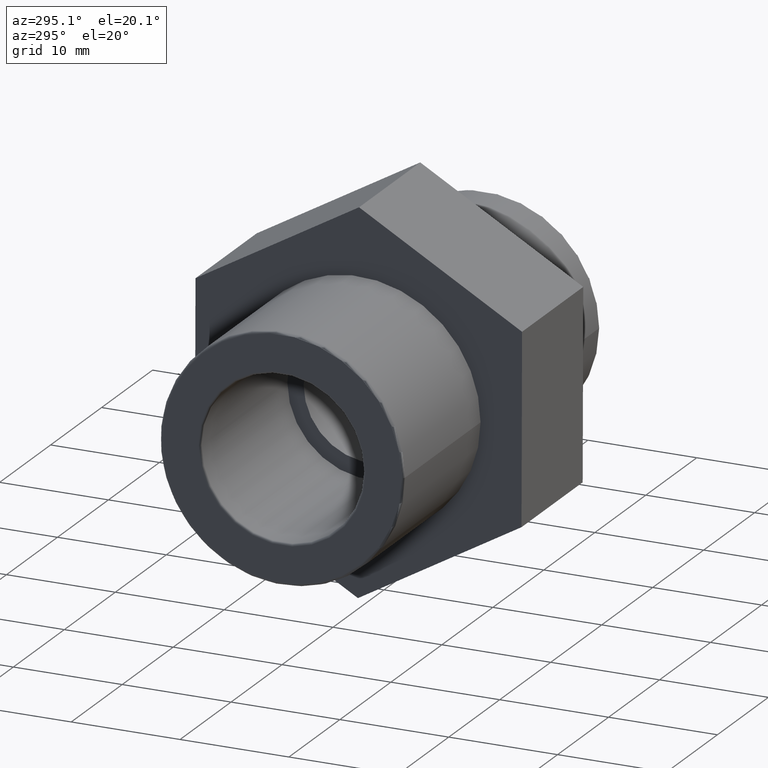
[diagram: clean part render]
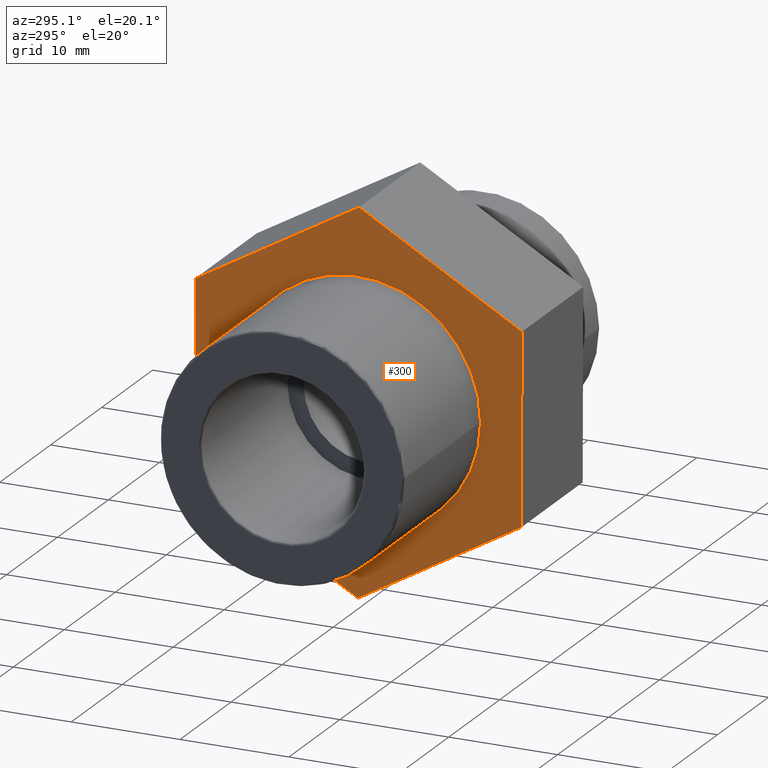
[diagram: same view with one face highlighted and labeled with its STEP entity id]
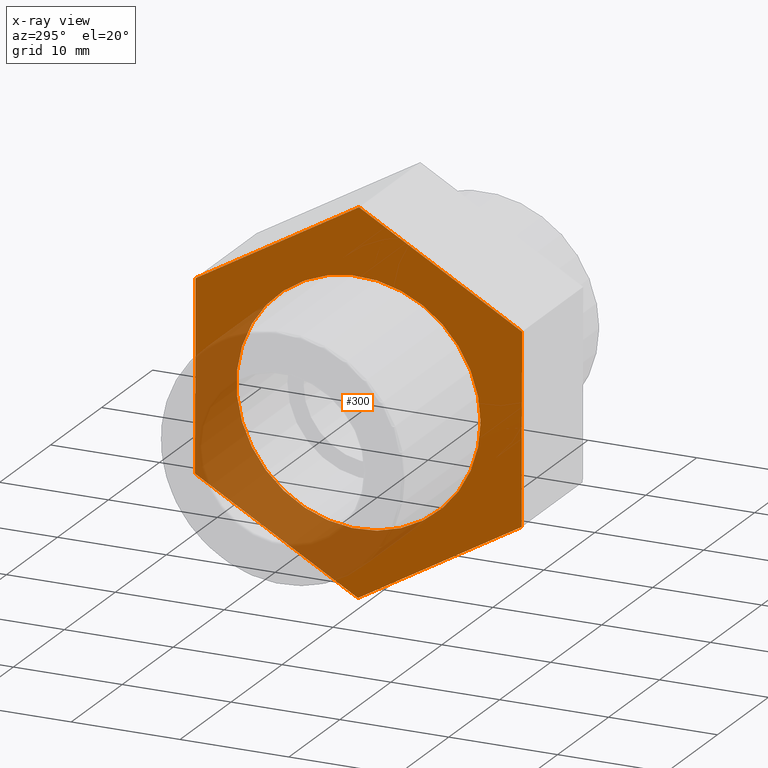
[diagram: x-ray of the same camera — body ghosted, the highlighted face saturated]
A machine part, auxiliary view. The second image highlights one B-rep face of the part: STEP entity #300.
The next image is the same camera in x-ray: the body ghosted, the highlighted face saturated — about 31% of this face is hidden behind the body in this view.
In plain terms, the highlighted planar face has unit normal (-1, -0, 0).
Its self-contained STEP definition (entity closure, byte-faithful):
#15=LINE('',#466,#33);
#19=LINE('',#474,#37);
#22=LINE('',#480,#40);
#25=LINE('',#487,#43);
#29=LINE('',#494,#47);
#31=LINE('',#497,#49);
#33=VECTOR('',#386,17.3205080756889);
#37=VECTOR('',#392,17.3205080756889);
#40=VECTOR('',#397,17.3205080756889);
#43=VECTOR('',#402,17.3205080756888);
#47=VECTOR('',#408,17.3205080756889);
#49=VECTOR('',#412,17.3205080756888);
#67=PLANE('',#337);
#82=FACE_BOUND('',#139,.T.);
#103=FACE_OUTER_BOUND('',#138,.T.);
#138=EDGE_LOOP('',(#269,#270,#271,#272,#273,#274));
#139=EDGE_LOOP('',(#275));
#151=CIRCLE('',#324,11.2125);
#165=VERTEX_POINT('',#461);
#166=VERTEX_POINT('',#464);
#167=VERTEX_POINT('',#465);
#170=VERTEX_POINT('',#473);
#172=VERTEX_POINT('',#479);
#174=VERTEX_POINT('',#485);
#175=VERTEX_POINT('',#486);
#191=EDGE_CURVE('',#165,#165,#151,.T.);
#192=EDGE_CURVE('',#166,#167,#15,.T.);
#196=EDGE_CURVE('',#167,#170,#19,.T.);
#199=EDGE_CURVE('',#170,#172,#22,.T.);
#202=EDGE_CURVE('',#174,#175,#25,.T.);
#206=EDGE_CURVE('',#175,#166,#29,.T.);
#208=EDGE_CURVE('',#172,#174,#31,.T.);
#269=ORIENTED_EDGE('',*,*,#206,.F.);
#270=ORIENTED_EDGE('',*,*,#202,.F.);
#271=ORIENTED_EDGE('',*,*,#208,.F.);
#272=ORIENTED_EDGE('',*,*,#199,.F.);
#273=ORIENTED_EDGE('',*,*,#196,.F.);
#274=ORIENTED_EDGE('',*,*,#192,.F.);
#275=ORIENTED_EDGE('',*,*,#191,.F.);
#300=ADVANCED_FACE('',(#103,#82),#67,.T.);
#324=AXIS2_PLACEMENT_3D('',#462,#382,#383);
#337=AXIS2_PLACEMENT_3D('',#507,#426,#427);
#382=DIRECTION('center_axis',(-1.,-1.83697019872103E-16,0.));
#383=DIRECTION('ref_axis',(0.,0.,1.));
#386=DIRECTION('',(-5.44336326564007E-19,0.00296322894591864,-0.999995609627469));
#392=DIRECTION('',(-1.59357755523959E-16,0.867503216083254,-0.49743157326934));
#397=DIRECTION('',(-1.58813419197395E-16,0.864539987137335,0.502564036358132));
#402=DIRECTION('',(1.59357755523959E-16,-0.867503216083253,0.497431573269341));
#408=DIRECTION('',(1.58813419197395E-16,-0.864539987137337,-0.502564036358127));
#412=DIRECTION('',(5.44336326564222E-19,-0.00296322894591981,0.999995609627469));
#426=DIRECTION('center_axis',(-1.,-1.83697019872103E-16,0.));
#427=DIRECTION('ref_axis',(0.,0.,1.));
#461=CARTESIAN_POINT('',(-4.99999999999999,-11.2125,0.));
#462=CARTESIAN_POINT('Origin',(-5.,2.75545529808154E-15,0.));
#464=CARTESIAN_POINT('',(-4.99999999999999,-15.0255964598561,8.61576758191424));
#465=CARTESIAN_POINT('',(-4.99999999999999,-14.9742718289682,-8.7046644502918));
#466=CARTESIAN_POINT('',(-4.99999999999999,-14.9871029866901,-4.3745564422403));
#473=CARTESIAN_POINT('',(-5.,0.0513246308879232,-17.320432032206));
#474=CARTESIAN_POINT('',(-4.99999999999999,-3.7050744840761,-15.1664901367275));
#479=CARTESIAN_POINT('',(-5.,15.0255964598561,-8.61576758191421));
#480=CARTESIAN_POINT('',(-5.,11.2820285026141,-10.7919336944872));
#485=CARTESIAN_POINT('',(-5.,14.9742718289682,8.70466445029174));
#486=CARTESIAN_POINT('',(-5.,-0.0513246308878628,17.320432032206));
#487=CARTESIAN_POINT('',(-5.,3.70507448407616,15.1664901367274));
#494=CARTESIAN_POINT('',(-4.99999999999999,-11.282028502614,10.7919336944872));
#497=CARTESIAN_POINT('',(-5.,14.9999341444121,0.0444484341887924));
#507=CARTESIAN_POINT('Origin',(-4.99999999999999,-11.2125,0.));